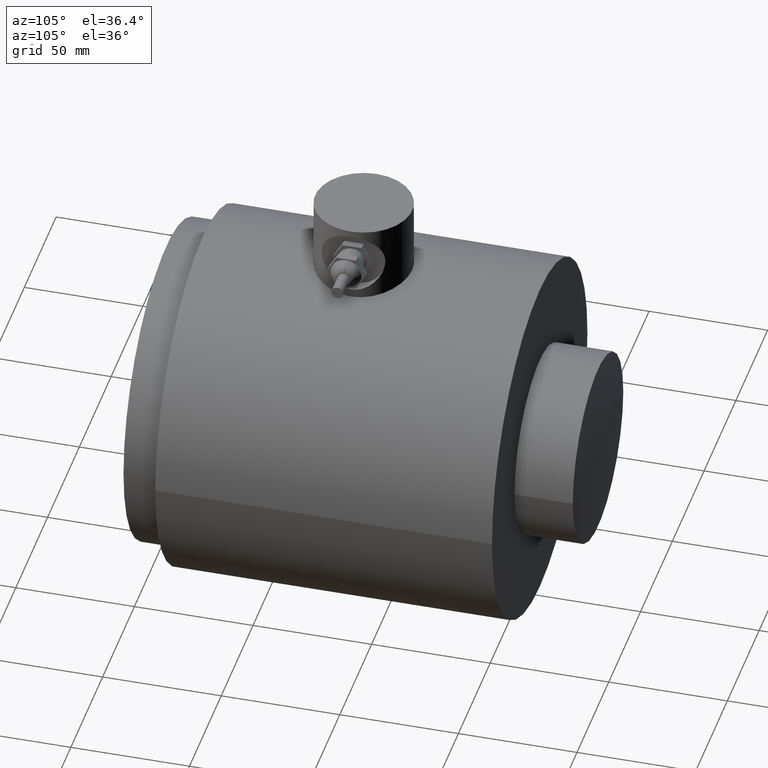
[diagram: clean part render]
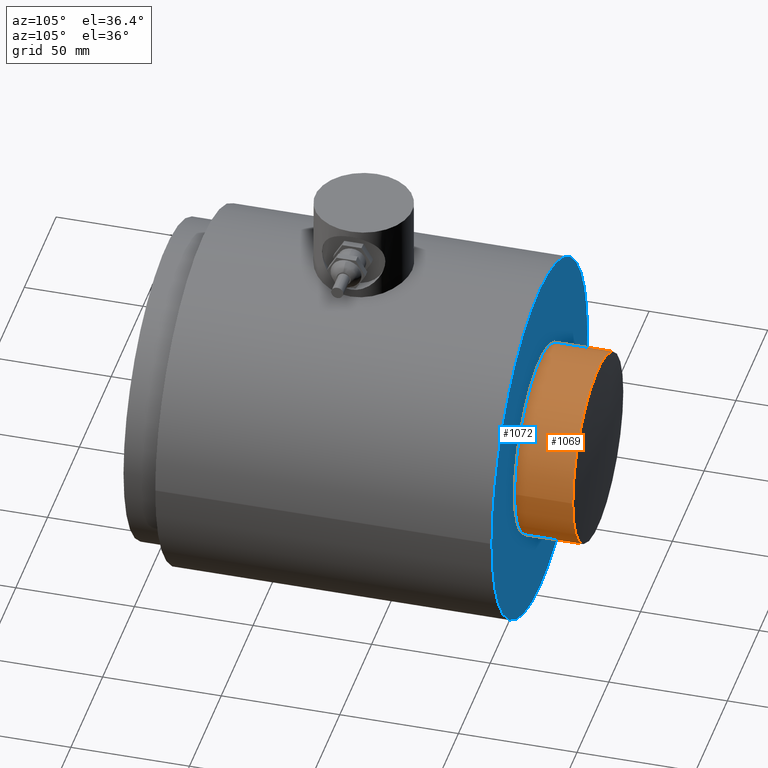
[diagram: same view with the hole feature highlighted: cylindrical wall and planar end face, labeled with their STEP entity ids]
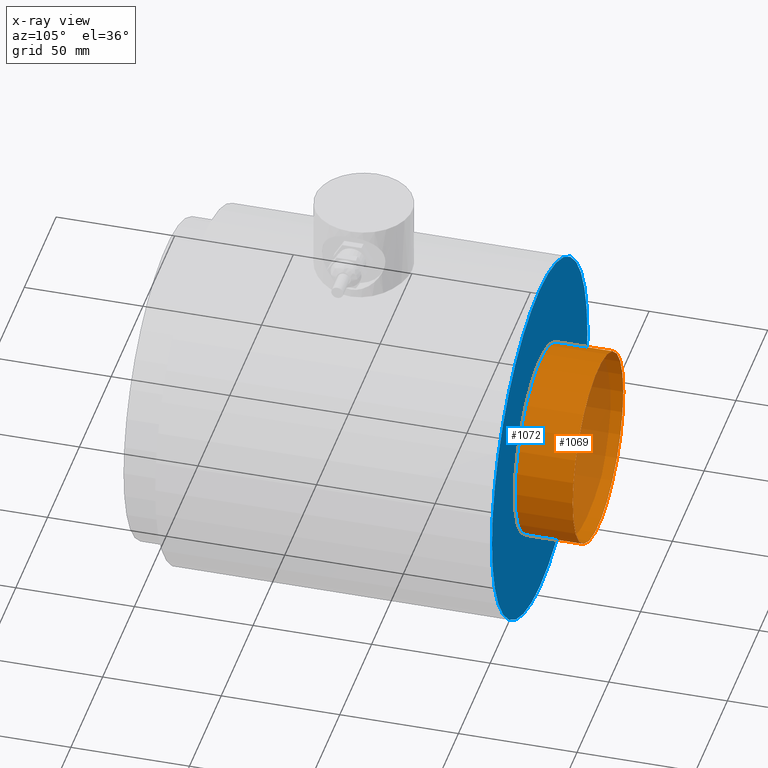
[diagram: x-ray of the same camera — body ghosted, the hole faces saturated]
A machine part, auxiliary view. The highlighted faces form one hole feature of diameter 79.502 mm: the cylindrical wall (entity #1069, orange) and its adjacent planar end face (entity #1072, blue) — they share a circular edge in the B-rep.
The next image is the same camera in x-ray (body ghosted, the hole faces saturated) — the bore reads through the body.
Wall:
#176=FACE_OUTER_BOUND('',#248,.T.);
#248=EDGE_LOOP('',(#953,#954,#955,#956));
#325=LINE('',#4339,#395);
#395=VECTOR('',#1413,1.565);
#420=CIRCLE('',#1169,1.565);
#421=CIRCLE('',#1171,1.565);
#520=VERTEX_POINT('',#4335);
#521=VERTEX_POINT('',#4338);
#667=EDGE_CURVE('',#520,#520,#420,.T.);
#668=EDGE_CURVE('',#520,#521,#325,.T.);
#669=EDGE_CURVE('',#521,#521,#421,.T.);
#953=ORIENTED_EDGE('',*,*,#667,.T.);
#954=ORIENTED_EDGE('',*,*,#668,.T.);
#955=ORIENTED_EDGE('',*,*,#669,.F.);
#956=ORIENTED_EDGE('',*,*,#668,.F.);
#1007=CYLINDRICAL_SURFACE('',#1170,1.565);
#1069=ADVANCED_FACE('',(#176),#1007,.T.);
#1169=AXIS2_PLACEMENT_3D('',#4336,#1409,#1410);
#1170=AXIS2_PLACEMENT_3D('',#4337,#1411,#1412);
#1171=AXIS2_PLACEMENT_3D('',#4340,#1414,#1415);
#1409=DIRECTION('center_axis',(0.,-1.,0.));
#1410=DIRECTION('ref_axis',(-1.,0.,0.));
#1411=DIRECTION('center_axis',(0.,1.,0.));
#1412=DIRECTION('ref_axis',(-1.,0.,0.));
#1413=DIRECTION('',(0.,-1.,0.));
#1414=DIRECTION('center_axis',(0.,-1.,0.));
#1415=DIRECTION('ref_axis',(-1.,0.,0.));
#4335=CARTESIAN_POINT('',(1.565,7.16859809876782,0.));
#4336=CARTESIAN_POINT('Origin',(0.,7.16859809876782,0.));
#4337=CARTESIAN_POINT('Origin',(0.,6.2007874015748,0.));
#4338=CARTESIAN_POINT('',(1.565,6.2007874015748,-1.91657224066561E-16));
#4339=CARTESIAN_POINT('',(1.565,6.2007874015748,-1.91657224066561E-16));
#4340=CARTESIAN_POINT('Origin',(0.,6.2007874015748,0.));
End face:
#89=FACE_BOUND('',#254,.T.);
#115=PLANE('',#1177);
#179=FACE_OUTER_BOUND('',#253,.T.);
#253=EDGE_LOOP('',(#965));
#254=EDGE_LOOP('',(#966));
#421=CIRCLE('',#1171,1.565);
#424=CIRCLE('',#1176,2.955);
#521=VERTEX_POINT('',#4338);
#524=VERTEX_POINT('',#4347);
#669=EDGE_CURVE('',#521,#521,#421,.T.);
#672=EDGE_CURVE('',#524,#524,#424,.T.);
#965=ORIENTED_EDGE('',*,*,#672,.T.);
#966=ORIENTED_EDGE('',*,*,#669,.T.);
#1072=ADVANCED_FACE('',(#179,#89),#115,.T.);
#1171=AXIS2_PLACEMENT_3D('',#4340,#1414,#1415);
#1176=AXIS2_PLACEMENT_3D('',#4348,#1424,#1425);
#1177=AXIS2_PLACEMENT_3D('',#4350,#1427,#1428);
#1414=DIRECTION('center_axis',(0.,-1.,0.));
#1415=DIRECTION('ref_axis',(-1.,0.,0.));
#1424=DIRECTION('center_axis',(0.,1.,0.));
#1425=DIRECTION('ref_axis',(-1.,0.,0.));
#1427=DIRECTION('center_axis',(0.,1.,0.));
#1428=DIRECTION('ref_axis',(-1.,0.,0.));
#4338=CARTESIAN_POINT('',(1.565,6.2007874015748,-1.91657224066561E-16));
#4340=CARTESIAN_POINT('Origin',(0.,6.2007874015748,0.));
#4347=CARTESIAN_POINT('',(2.955,6.2007874015748,-3.61883129148043E-16));
#4348=CARTESIAN_POINT('Origin',(0.,6.2007874015748,0.));
#4350=CARTESIAN_POINT('Origin',(0.,6.2007874015748,0.));